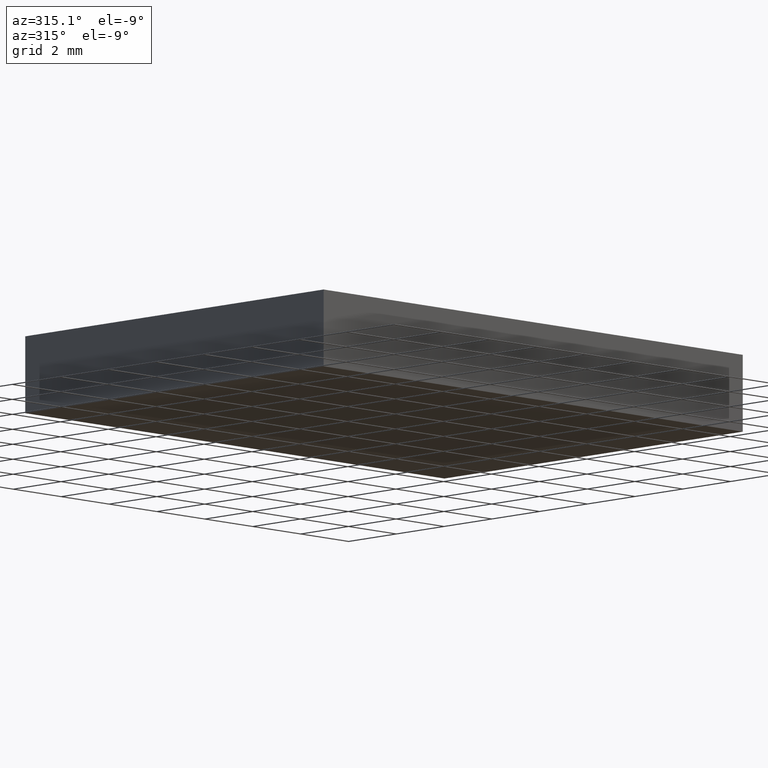
[diagram: clean part render]
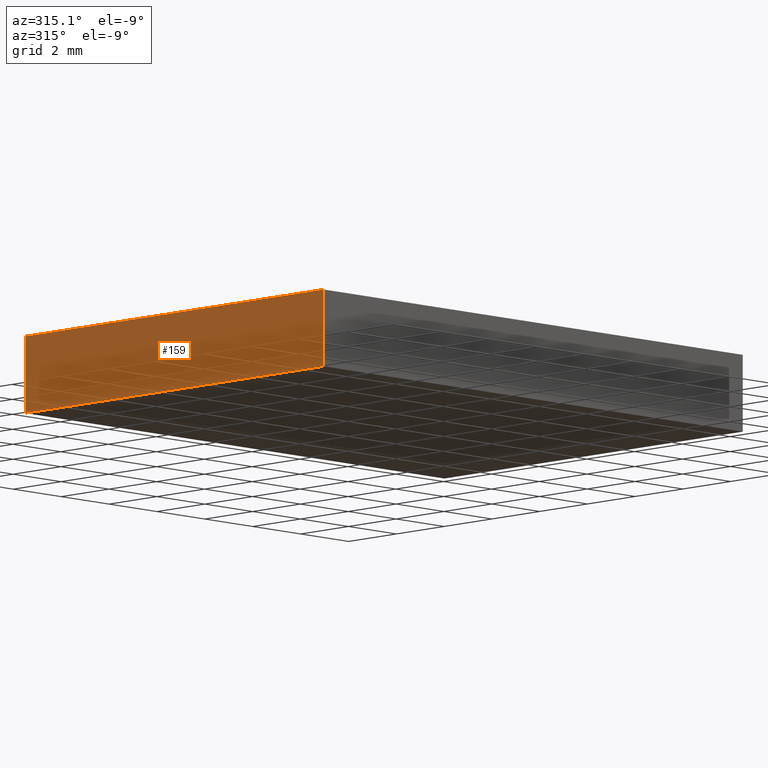
[diagram: same view with one face highlighted and labeled with its STEP entity id]
A machine part, auxiliary view. The second image highlights one B-rep face of the part: STEP entity #159.
In plain terms, the highlighted planar face has unit normal (1, 0, -0).
Its self-contained STEP definition (entity closure, byte-faithful):
#4 = ORIENTED_EDGE ( 'NONE', *, *, #139, .F. ) ;
#6 = PLANE ( 'NONE',  #130 ) ;
#8 = CARTESIAN_POINT ( 'NONE',  ( 45.55749197114184300, 37.03162091726329000, 2.299999999999999800 ) ) ;
#21 = CARTESIAN_POINT ( 'NONE',  ( 45.55749197114184300, 37.03162091726329000, 0.0000000000000000000 ) ) ;
#22 = DIRECTION ( 'NONE',  ( -0.0000000000000000000, -0.0000000000000000000, -1.000000000000000000 ) ) ;
#24 = VECTOR ( 'NONE', #22, 1000.000000000000000 ) ;
#30 = VECTOR ( 'NONE', #161, 1000.000000000000000 ) ;
#41 = DIRECTION ( 'NONE',  ( -0.0000000000000000000, 0.0000000000000000000, -1.000000000000000000 ) ) ;
#48 = FACE_OUTER_BOUND ( 'NONE', #50, .T. ) ;
#50 = EDGE_LOOP ( 'NONE', ( #112, #154, #4, #70 ) ) ;
#53 = LINE ( 'NONE', #116, #30 ) ;
#54 = DIRECTION ( 'NONE',  ( -0.0000000000000000000, -0.0000000000000000000, -1.000000000000000000 ) ) ;
#58 = LINE ( 'NONE', #138, #24 ) ;
#70 = ORIENTED_EDGE ( 'NONE', *, *, #200, .T. ) ;
#77 = CARTESIAN_POINT ( 'NONE',  ( 45.55749197114184300, 37.03162091726329000, 2.299999999999999800 ) ) ;
#78 = DIRECTION ( 'NONE',  ( 1.000000000000000000, 0.0000000000000000000, -0.0000000000000000000 ) ) ;
#82 = EDGE_CURVE ( 'NONE', #187, #145, #53, .T. ) ;
#107 = CARTESIAN_POINT ( 'NONE',  ( 45.55749197114184300, 24.53162091726330000, 0.0000000000000000000 ) ) ;
#112 = ORIENTED_EDGE ( 'NONE', *, *, #82, .T. ) ;
#114 = EDGE_CURVE ( 'NONE', #162, #145, #202, .T. ) ;
#116 = CARTESIAN_POINT ( 'NONE',  ( 45.55749197114184300, 37.03162091726329000, 0.0000000000000000000 ) ) ;
#120 = CARTESIAN_POINT ( 'NONE',  ( 45.55749197114184300, 24.53162091726330000, 2.299999999999999800 ) ) ;
#124 = CARTESIAN_POINT ( 'NONE',  ( 45.55749197114184300, 37.03162091726329000, 2.299999999999999800 ) ) ;
#130 = AXIS2_PLACEMENT_3D ( 'NONE', #8, #78, #41 ) ;
#138 = CARTESIAN_POINT ( 'NONE',  ( 45.55749197114184300, 37.03162091726329000, 2.299999999999999800 ) ) ;
#139 = EDGE_CURVE ( 'NONE', #186, #162, #176, .T. ) ;
#142 = CARTESIAN_POINT ( 'NONE',  ( 45.55749197114184300, 24.53162091726330000, 2.299999999999999800 ) ) ;
#143 = VECTOR ( 'NONE', #54, 1000.000000000000000 ) ;
#145 = VERTEX_POINT ( 'NONE', #107 ) ;
#154 = ORIENTED_EDGE ( 'NONE', *, *, #114, .F. ) ;
#159 = ADVANCED_FACE ( 'NONE', ( #48 ), #6, .F. ) ;
#161 = DIRECTION ( 'NONE',  ( 0.0000000000000000000, -1.000000000000000000, 0.0000000000000000000 ) ) ;
#162 = VERTEX_POINT ( 'NONE', #142 ) ;
#176 = LINE ( 'NONE', #124, #183 ) ;
#183 = VECTOR ( 'NONE', #195, 1000.000000000000000 ) ;
#186 = VERTEX_POINT ( 'NONE', #77 ) ;
#187 = VERTEX_POINT ( 'NONE', #21 ) ;
#195 = DIRECTION ( 'NONE',  ( 0.0000000000000000000, -1.000000000000000000, 0.0000000000000000000 ) ) ;
#200 = EDGE_CURVE ( 'NONE', #186, #187, #58, .T. ) ;
#202 = LINE ( 'NONE', #120, #143 ) ;